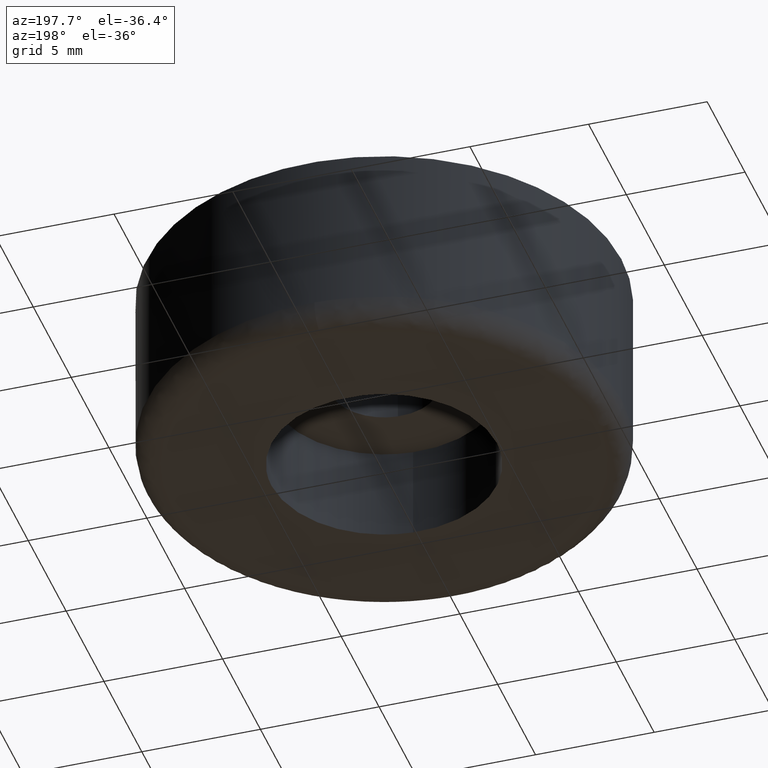
[diagram: clean part render]
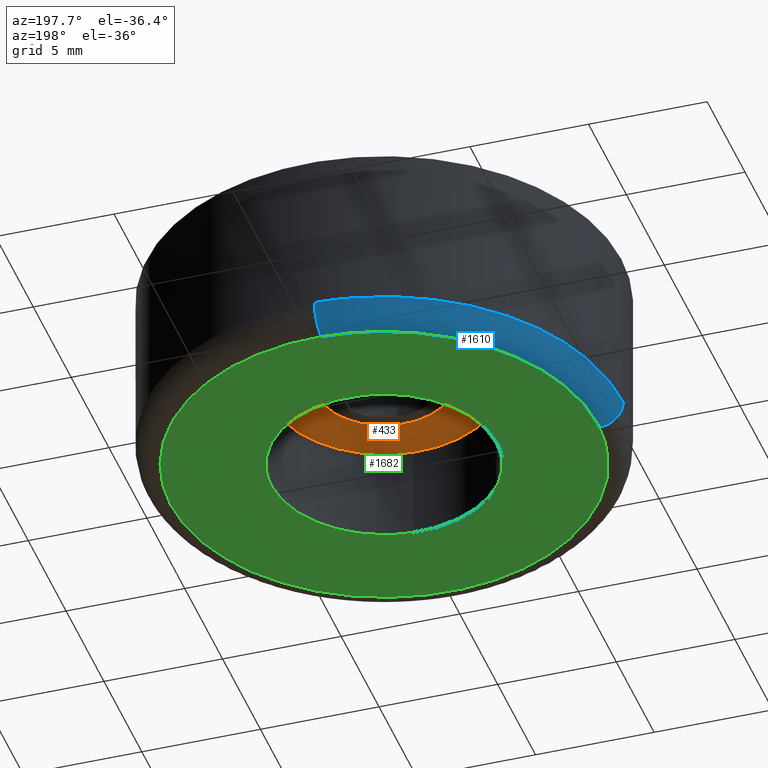
[diagram: same view with three faces highlighted in distinct colors, each labeled with its STEP entity id]
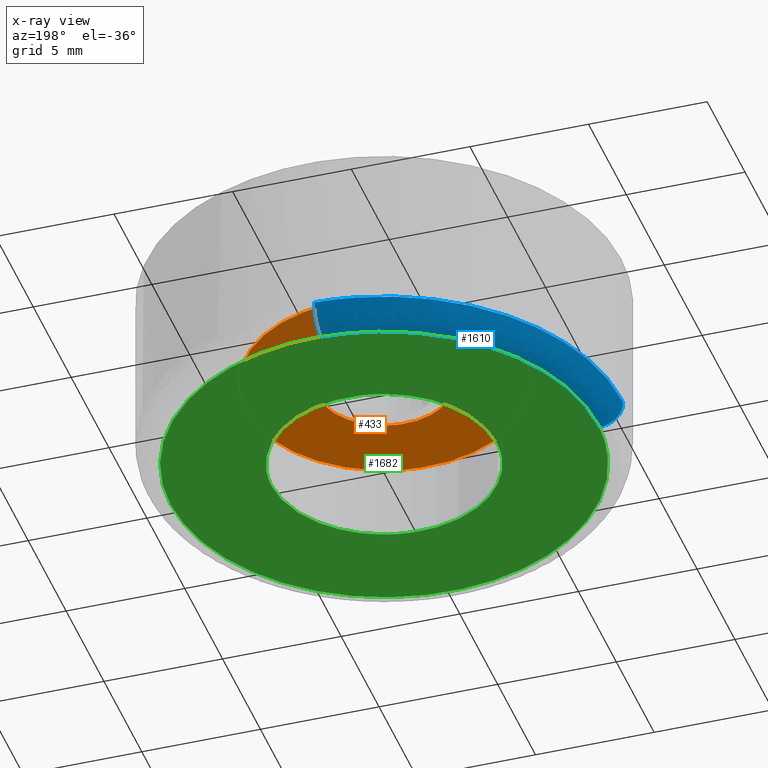
[diagram: x-ray of the same camera — body ghosted, the three highlighted faces saturated]
A machine part, auxiliary view with three faces highlighted in distinct colors.
The next image is the same camera in x-ray (body ghosted, the three faces saturated) — at least one of them is partly hidden behind the body in this view.
Their STEP definitions:

[orange] entity #433 — the highlighted face is a freeform B-spline surface patch.
#66=CARTESIAN_POINT('',(-0.330495857053595,2.780426673816522,3.999999999999901));
#67=VERTEX_POINT('',#66);
#68=CARTESIAN_POINT('',(2.800000000000000,0.0,3.999999999999901));
#69=VERTEX_POINT('',#68);
#70=CARTESIAN_POINT('',(-0.330495857053595,2.780426673816522,3.999999999999900));
#71=CARTESIAN_POINT('',(-0.165827535040175,2.800000000000000,3.999999999999901));
#72=CARTESIAN_POINT('',(0.0,2.800000000000000,3.999999999999901));
#73=CARTESIAN_POINT('',(2.800000000000000,2.800000000000000,3.999999999999901));
#74=CARTESIAN_POINT('',(2.800000000000000,0.0,3.999999999999901));
#82=(BOUNDED_CURVE()B_SPLINE_CURVE(2,(#70,#71,#72,#73,#74),.UNSPECIFIED.,.F.,.U.)B_SPLINE_CURVE_WITH_KNOTS((3,2,3),(0.229562473513861,0.250000000000000,0.500000000000000),.UNSPECIFIED.)CURVE()GEOMETRIC_REPRESENTATION_ITEM()RATIONAL_B_SPLINE_CURVE((0.956026754184390,0.976055948331558,1.0,0.707106781186547,1.0))REPRESENTATION_ITEM(''));
#83=EDGE_CURVE('',#67,#69,#82,.T.);
#85=CARTESIAN_POINT('',(0.170933944930107,-2.794777555811329,3.999999999999846));
#86=VERTEX_POINT('',#85);
#87=CARTESIAN_POINT('',(2.800000000000000,0.0,3.999999999999901));
#88=CARTESIAN_POINT('',(2.800000000000000,-2.633978843463531,3.999999999999901));
#89=CARTESIAN_POINT('',(0.170933944930107,-2.794777555811329,3.999999999999847));
#97=(BOUNDED_CURVE()B_SPLINE_CURVE(2,(#87,#88,#89),.UNSPECIFIED.,.F.,.U.)B_SPLINE_CURVE_WITH_KNOTS((3,3),(0.500000000000000,0.739333083606517),.UNSPECIFIED.)CURVE()GEOMETRIC_REPRESENTATION_ITEM()RATIONAL_B_SPLINE_CURVE((1.0,0.719603851095753,0.976072301780669))REPRESENTATION_ITEM(''));
#98=EDGE_CURVE('',#69,#86,#97,.T.);
#165=CARTESIAN_POINT('',(-2.800000000000000,0.0,3.999999999999901));
#166=VERTEX_POINT('',#165);
#167=CARTESIAN_POINT('',(-2.800000000000000,0.0,3.999999999999901));
#168=CARTESIAN_POINT('',(-2.800000000000000,2.486888672637399,3.999999999999901));
#169=CARTESIAN_POINT('',(-0.330495857053595,2.780426673816522,3.999999999999900));
#177=(BOUNDED_CURVE()B_SPLINE_CURVE(2,(#167,#168,#169),.UNSPECIFIED.,.F.,.U.)B_SPLINE_CURVE_WITH_KNOTS((3,3),(0.0,0.229562473513861),.UNSPECIFIED.)CURVE()GEOMETRIC_REPRESENTATION_ITEM()RATIONAL_B_SPLINE_CURVE((1.0,0.731050832854990,0.956026754184390))REPRESENTATION_ITEM(''));
#178=EDGE_CURVE('',#166,#67,#177,.T.);
#212=CARTESIAN_POINT('',(0.170933944930107,-2.794777555811329,3.999999999999847));
#213=CARTESIAN_POINT('',(0.085546751596445,-2.800000000000000,3.999999999999901));
#214=CARTESIAN_POINT('',(0.0,-2.800000000000000,3.999999999999901));
#215=CARTESIAN_POINT('',(-2.800000000000000,-2.800000000000000,3.999999999999901));
#216=CARTESIAN_POINT('',(-2.800000000000000,0.0,3.999999999999901));
#224=(BOUNDED_CURVE()B_SPLINE_CURVE(2,(#212,#213,#214,#215,#216),.UNSPECIFIED.,.F.,.U.)B_SPLINE_CURVE_WITH_KNOTS((3,2,3),(0.739333083606517,0.750000000000000,1.0),.UNSPECIFIED.)CURVE()GEOMETRIC_REPRESENTATION_ITEM()RATIONAL_B_SPLINE_CURVE((0.976072301780669,0.987502930090795,1.0,0.707106781186547,1.0))REPRESENTATION_ITEM(''));
#225=EDGE_CURVE('',#86,#166,#224,.T.);
#252=CARTESIAN_POINT('',(-0.690493967417739,5.809106478703879,4.000000000000060));
#253=VERTEX_POINT('',#252);
#254=CARTESIAN_POINT('',(5.850000000000001,0.0,3.999999999999901));
#255=VERTEX_POINT('',#254);
#256=CARTESIAN_POINT('',(-0.690493967417739,5.809106478703879,4.000000000000060));
#257=CARTESIAN_POINT('',(-0.346457913972497,5.850000000000000,3.999999999999901));
#258=CARTESIAN_POINT('',(0.0,5.850000000000001,3.999999999999901));
#259=CARTESIAN_POINT('',(5.850000000000001,5.850000000000001,3.999999999999901));
#260=CARTESIAN_POINT('',(5.850000000000001,0.0,3.999999999999901));
#268=(BOUNDED_CURVE()B_SPLINE_CURVE(2,(#256,#257,#258,#259,#260),.UNSPECIFIED.,.F.,.U.)B_SPLINE_CURVE_WITH_KNOTS((3,2,3),(0.229562656955301,0.250000000000000,0.500000000000000),.UNSPECIFIED.)CURVE()GEOMETRIC_REPRESENTATION_ITEM()RATIONAL_B_SPLINE_CURVE((0.956027113737436,0.976056163246574,1.0,0.707106781186548,1.0))REPRESENTATION_ITEM(''));
#269=EDGE_CURVE('',#253,#255,#268,.T.);
#310=CARTESIAN_POINT('',(0.357126633811995,-5.839089018619966,3.999999999999863));
#311=VERTEX_POINT('',#310);
#317=CARTESIAN_POINT('',(5.850000000000001,0.0,3.999999999999901));
#318=CARTESIAN_POINT('',(5.850000000000001,-5.503137405459086,3.999999999999901));
#319=CARTESIAN_POINT('',(0.357126633811995,-5.839089018619966,3.999999999999863));
#327=(BOUNDED_CURVE()B_SPLINE_CURVE(2,(#317,#318,#319),.UNSPECIFIED.,.F.,.U.)B_SPLINE_CURVE_WITH_KNOTS((3,3),(0.500000000000000,0.739333178623061),.UNSPECIFIED.)CURVE()GEOMETRIC_REPRESENTATION_ITEM()RATIONAL_B_SPLINE_CURVE((1.0,0.719603739776947,0.976072505419511))REPRESENTATION_ITEM(''));
#328=EDGE_CURVE('',#255,#311,#327,.T.);
#351=CARTESIAN_POINT('',(-5.850000000000001,0.0,3.999999999999901));
#352=VERTEX_POINT('',#351);
#353=CARTESIAN_POINT('',(-5.850000000000001,0.0,3.999999999999901));
#354=CARTESIAN_POINT('',(-5.850000000000001,5.195826656171137,3.999999999999901));
#355=CARTESIAN_POINT('',(-0.690493967417739,5.809106478703879,4.000000000000060));
#363=(BOUNDED_CURVE()B_SPLINE_CURVE(2,(#353,#354,#355),.UNSPECIFIED.,.F.,.U.)B_SPLINE_CURVE_WITH_KNOTS((3,3),(0.0,0.229562656955301),.UNSPECIFIED.)CURVE()GEOMETRIC_REPRESENTATION_ITEM()RATIONAL_B_SPLINE_CURVE((1.0,0.731050617939974,0.956027113737436))REPRESENTATION_ITEM(''));
#364=EDGE_CURVE('',#352,#253,#363,.T.);
#366=CARTESIAN_POINT('',(0.357126633811995,-5.839089018619966,3.999999999999863));
#367=CARTESIAN_POINT('',(0.178729993797895,-5.850000000000001,3.999999999999901));
#368=CARTESIAN_POINT('',(0.0,-5.850000000000001,3.999999999999901));
#369=CARTESIAN_POINT('',(-5.850000000000001,-5.850000000000001,3.999999999999901));
#370=CARTESIAN_POINT('',(-5.850000000000001,0.0,3.999999999999901));
#378=(BOUNDED_CURVE()B_SPLINE_CURVE(2,(#366,#367,#368,#369,#370),.UNSPECIFIED.,.F.,.U.)B_SPLINE_CURVE_WITH_KNOTS((3,2,3),(0.739333178623061,0.750000000000000,1.0),.UNSPECIFIED.)CURVE()GEOMETRIC_REPRESENTATION_ITEM()RATIONAL_B_SPLINE_CURVE((0.976072505419511,0.987503041409601,1.0,0.707106781186548,1.0))REPRESENTATION_ITEM(''));
#379=EDGE_CURVE('',#311,#352,#378,.T.);
#416=CARTESIAN_POINT('',(-6.434414867491902,-6.434272923016585,3.999999999999901));
#417=CARTESIAN_POINT('',(6.434415285916506,-6.434272923016585,3.999999999999901));
#418=CARTESIAN_POINT('',(-6.434414867491902,6.434308593714277,3.999999999999901));
#419=CARTESIAN_POINT('',(6.434415285916506,6.434308593714277,3.999999999999901));
#420=B_SPLINE_SURFACE_WITH_KNOTS('',1,1,((#416,#418),(#417,#419)),.UNSPECIFIED.,.F.,.F.,.U.,(2,2),(2,2),(0.0,12.868830153408410),(0.0,12.868581516730860),.UNSPECIFIED.);
#421=ORIENTED_EDGE('',*,*,#364,.T.);
#422=ORIENTED_EDGE('',*,*,#269,.T.);
#423=ORIENTED_EDGE('',*,*,#328,.T.);
#424=ORIENTED_EDGE('',*,*,#379,.T.);
#425=EDGE_LOOP('',(#421,#422,#423,#424));
#426=FACE_OUTER_BOUND('',#425,.T.);
#427=ORIENTED_EDGE('',*,*,#98,.F.);
#428=ORIENTED_EDGE('',*,*,#83,.F.);
#429=ORIENTED_EDGE('',*,*,#178,.F.);
#430=ORIENTED_EDGE('',*,*,#225,.F.);
#431=EDGE_LOOP('',(#427,#428,#429,#430));
#432=FACE_BOUND('',#431,.T.);
#433=ADVANCED_FACE('',(#426,#432),#420,.F.);

[blue] entity #1610 — the highlighted face is a freeform B-spline surface patch.
#1347=CARTESIAN_POINT('',(-0.251300954433966,9.996841892832983,0.999999999972321));
#1348=VERTEX_POINT('',#1347);
#1364=CARTESIAN_POINT('',(-10.0,0.0,1.0));
#1365=VERTEX_POINT('',#1364);
#1366=CARTESIAN_POINT('',(-10.0,0.0,1.0));
#1367=CARTESIAN_POINT('',(-10.0,9.751778761805332,1.0));
#1368=CARTESIAN_POINT('',(-0.251300954433967,9.996841892832983,0.999999999972321));
#1376=(BOUNDED_CURVE()B_SPLINE_CURVE(2,(#1366,#1367,#1368),.UNSPECIFIED.,.F.,.U.)B_SPLINE_CURVE_WITH_KNOTS((3,3),(0.0,0.245579891769787),.UNSPECIFIED.)CURVE()GEOMETRIC_REPRESENTATION_ITEM()RATIONAL_B_SPLINE_CURVE((1.0,0.712285260094752,0.989826157681529))REPRESENTATION_ITEM(''));
#1377=EDGE_CURVE('',#1365,#1348,#1376,.T.);
#1379=CARTESIAN_POINT('',(-9.996841892832979,-0.251300954434183,0.999999999972386));
#1380=VERTEX_POINT('',#1379);
#1381=CARTESIAN_POINT('',(-9.996841892832979,-0.251300954434183,0.999999999972386));
#1382=CARTESIAN_POINT('',(-9.999999999999998,-0.125670321234605,1.0));
#1383=CARTESIAN_POINT('',(-10.0,0.0,1.0));
#1391=(BOUNDED_CURVE()B_SPLINE_CURVE(2,(#1381,#1382,#1383),.UNSPECIFIED.,.F.,.U.)B_SPLINE_CURVE_WITH_KNOTS((3,3),(0.995579891769779,1.0),.UNSPECIFIED.)CURVE()GEOMETRIC_REPRESENTATION_ITEM()RATIONAL_B_SPLINE_CURVE((0.989826157681512,0.994821521091787,1.0))REPRESENTATION_ITEM(''));
#1392=EDGE_CURVE('',#1380,#1365,#1391,.T.);
#1490=CARTESIAN_POINT('',(-0.226170859030829,8.997157703990462,1.874299E-016));
#1491=VERTEX_POINT('',#1490);
#1509=CARTESIAN_POINT('',(-0.251300954433967,9.996841892832983,0.999999999972321));
#1510=CARTESIAN_POINT('',(-0.251300954431984,9.996841892777656,8.832976E-010));
#1511=CARTESIAN_POINT('',(-0.226170859030829,8.997157703990462,1.874299E-016));
#1519=(BOUNDED_CURVE()B_SPLINE_CURVE(2,(#1509,#1510,#1511),.UNSPECIFIED.,.F.,.U.)B_SPLINE_CURVE_WITH_KNOTS((3,3),(-1.723441281927773,-0.263586879842010),.UNSPECIFIED.)CURVE()GEOMETRIC_REPRESENTATION_ITEM()RATIONAL_B_SPLINE_CURVE((0.883897567118577,0.626638727408863,0.888510408734575))REPRESENTATION_ITEM(''));
#1520=EDGE_CURVE('',#1348,#1491,#1519,.T.);
#1526=CARTESIAN_POINT('',(-8.997157704003575,-0.226170859032163,1.874299E-016));
#1527=VERTEX_POINT('',#1526);
#1528=CARTESIAN_POINT('',(-9.996841892832981,-0.251300954434183,0.999999999972386));
#1529=CARTESIAN_POINT('',(-9.996841892777784,-0.251300954431986,9.095835E-010));
#1530=CARTESIAN_POINT('',(-8.997157704003575,-0.226170859032163,1.874299E-016));
#1538=(BOUNDED_CURVE()B_SPLINE_CURVE(2,(#1528,#1529,#1530),.UNSPECIFIED.,.F.,.U.)B_SPLINE_CURVE_WITH_KNOTS((3,3),(-1.723441281927906,-0.263586879869215),.UNSPECIFIED.)CURVE()GEOMETRIC_REPRESENTATION_ITEM()RATIONAL_B_SPLINE_CURVE((0.883897567118624,0.626638727413633,0.888510408724815))REPRESENTATION_ITEM(''));
#1539=EDGE_CURVE('',#1380,#1527,#1538,.T.);
#1559=CARTESIAN_POINT('',(-9.994408967665542,-0.251239795477056,1.069724204138579));
#1560=CARTESIAN_POINT('',(-10.245648763142597,9.743169172188484,1.069724204138580));
#1561=CARTESIAN_POINT('',(-0.251239795477056,9.994408967665542,1.069724204138579));
#1562=CARTESIAN_POINT('',(-10.074556635569309,-0.253254550302203,-0.077336158640998));
#1563=CARTESIAN_POINT('',(-10.327811185871514,9.821302085267105,-0.077336158640998));
#1564=CARTESIAN_POINT('',(-0.253254550302204,10.074556635569309,-0.077336158640998));
#1565=CARTESIAN_POINT('',(-8.927828621662728,-0.224428062151299,0.002407677924550));
#1566=CARTESIAN_POINT('',(-9.152256683814027,8.703400559511429,0.002407677924550));
#1567=CARTESIAN_POINT('',(-0.224428062151300,8.927828621662728,0.002407677924550));
#1575=(BOUNDED_SURFACE()B_SPLINE_SURFACE(2,2,((#1559,#1562,#1565),(#1560,#1563,#1566),(#1561,#1564,#1567)),.UNSPECIFIED.,.F.,.F.,.U.)B_SPLINE_SURFACE_WITH_KNOTS((3,3),(3,3),(0.0,16.564510219085481),(0.0,1.822370844445835),.UNSPECIFIED.)GEOMETRIC_REPRESENTATION_ITEM()RATIONAL_B_SPLINE_SURFACE(((0.910892949472383,0.599412845017406,0.915966794052128),(0.644098581506937,0.423848887442129,0.647686331415961),(0.910892949472383,0.599412845017406,0.915966794052128)))REPRESENTATION_ITEM('')SURFACE());
#1576=CARTESIAN_POINT('',(-9.0,0.0,0.0));
#1577=VERTEX_POINT('',#1576);
#1578=CARTESIAN_POINT('',(-9.0,0.0,0.0));
#1579=CARTESIAN_POINT('',(-9.000000000000002,8.776600885567889,0.0));
#1580=CARTESIAN_POINT('',(-0.226170859030829,8.997157703990462,1.874299E-016));
#1588=(BOUNDED_CURVE()B_SPLINE_CURVE(2,(#1578,#1579,#1580),.UNSPECIFIED.,.F.,.U.)B_SPLINE_CURVE_WITH_KNOTS((3,3),(0.0,0.245579891768653),.UNSPECIFIED.)CURVE()GEOMETRIC_REPRESENTATION_ITEM()RATIONAL_B_SPLINE_CURVE((1.0,0.712285260096080,0.989826157678966))REPRESENTATION_ITEM(''));
#1589=EDGE_CURVE('',#1577,#1491,#1588,.T.);
#1590=ORIENTED_EDGE('',*,*,#1589,.F.);
#1591=CARTESIAN_POINT('',(-8.997157704003575,-0.226170859032163,1.874299E-016));
#1592=CARTESIAN_POINT('',(-9.000000000000002,-0.113103289141129,0.0));
#1593=CARTESIAN_POINT('',(-9.0,0.0,0.0));
#1601=(BOUNDED_CURVE()B_SPLINE_CURVE(2,(#1591,#1592,#1593),.UNSPECIFIED.,.F.,.U.)B_SPLINE_CURVE_WITH_KNOTS((3,3),(0.995579891768614,1.0),.UNSPECIFIED.)CURVE()GEOMETRIC_REPRESENTATION_ITEM()RATIONAL_B_SPLINE_CURVE((0.989826157678877,0.994821521090421,1.0))REPRESENTATION_ITEM(''));
#1602=EDGE_CURVE('',#1527,#1577,#1601,.T.);
#1603=ORIENTED_EDGE('',*,*,#1602,.F.);
#1604=ORIENTED_EDGE('',*,*,#1539,.F.);
#1605=ORIENTED_EDGE('',*,*,#1392,.T.);
#1606=ORIENTED_EDGE('',*,*,#1377,.T.);
#1607=ORIENTED_EDGE('',*,*,#1520,.T.);
#1608=EDGE_LOOP('',(#1590,#1603,#1604,#1605,#1606,#1607));
#1609=FACE_OUTER_BOUND('',#1608,.T.);
#1610=ADVANCED_FACE('',(#1609),#1575,.T.);

[green] entity #1682 — the highlighted face is a freeform B-spline surface patch.
#1096=CARTESIAN_POINT('',(-0.560657960675820,4.716795803414524,9.937999E-017));
#1097=VERTEX_POINT('',#1096);
#1103=CARTESIAN_POINT('',(4.750000000000000,0.0,0.0));
#1104=VERTEX_POINT('',#1103);
#1105=CARTESIAN_POINT('',(-0.560657960675820,4.716795803414524,9.937999E-017));
#1106=CARTESIAN_POINT('',(-0.281312216774577,4.750000000000000,0.0));
#1107=CARTESIAN_POINT('',(0.0,4.750000000000000,0.0));
#1108=CARTESIAN_POINT('',(4.750000000000000,4.750000000000000,0.0));
#1109=CARTESIAN_POINT('',(4.750000000000000,0.0,0.0));
#1117=(BOUNDED_CURVE()B_SPLINE_CURVE(2,(#1105,#1106,#1107,#1108,#1109),.UNSPECIFIED.,.F.,.U.)B_SPLINE_CURVE_WITH_KNOTS((3,2,3),(0.229562640266929,0.250000000000000,0.500000000000000),.UNSPECIFIED.)CURVE()GEOMETRIC_REPRESENTATION_ITEM()RATIONAL_B_SPLINE_CURVE((0.956027081027489,0.976056143694930,1.0,0.707106781186548,1.0))REPRESENTATION_ITEM(''));
#1118=EDGE_CURVE('',#1097,#1104,#1117,.T.);
#1120=CARTESIAN_POINT('',(0.289974693720068,-4.741140651464304,3.191891E-016));
#1121=VERTEX_POINT('',#1120);
#1122=CARTESIAN_POINT('',(4.750000000000000,0.0,0.0));
#1123=CARTESIAN_POINT('',(4.750000000000000,-4.468359359528671,0.0));
#1124=CARTESIAN_POINT('',(0.289974693720068,-4.741140651464304,3.191891E-016));
#1132=(BOUNDED_CURVE()B_SPLINE_CURVE(2,(#1122,#1123,#1124),.UNSPECIFIED.,.F.,.U.)B_SPLINE_CURVE_WITH_KNOTS((3,3),(0.500000000000000,0.739333175838144),.UNSPECIFIED.)CURVE()GEOMETRIC_REPRESENTATION_ITEM()RATIONAL_B_SPLINE_CURVE((1.0,0.719603743039680,0.976072499450894))REPRESENTATION_ITEM(''));
#1133=EDGE_CURVE('',#1104,#1121,#1132,.T.);
#1207=CARTESIAN_POINT('',(-4.750000000000000,0.0,0.0));
#1208=VERTEX_POINT('',#1207);
#1209=CARTESIAN_POINT('',(0.289974693720068,-4.741140651464304,3.191891E-016));
#1210=CARTESIAN_POINT('',(0.145122682905173,-4.750000000000002,0.0));
#1211=CARTESIAN_POINT('',(0.0,-4.750000000000000,0.0));
#1212=CARTESIAN_POINT('',(-4.750000000000000,-4.750000000000000,0.0));
#1213=CARTESIAN_POINT('',(-4.750000000000000,0.0,0.0));
#1221=(BOUNDED_CURVE()B_SPLINE_CURVE(2,(#1209,#1210,#1211,#1212,#1213),.UNSPECIFIED.,.F.,.U.)B_SPLINE_CURVE_WITH_KNOTS((3,2,3),(0.739333175838144,0.750000000000000,1.0),.UNSPECIFIED.)CURVE()GEOMETRIC_REPRESENTATION_ITEM()RATIONAL_B_SPLINE_CURVE((0.976072499450894,0.987503038146868,1.0,0.707106781186548,1.0))REPRESENTATION_ITEM(''));
#1222=EDGE_CURVE('',#1121,#1208,#1221,.T.);
#1224=CARTESIAN_POINT('',(-4.750000000000000,0.0,0.0));
#1225=CARTESIAN_POINT('',(-4.749999999999999,4.218833190186770,0.0));
#1226=CARTESIAN_POINT('',(-0.560657960675820,4.716795803414524,9.937999E-017));
#1234=(BOUNDED_CURVE()B_SPLINE_CURVE(2,(#1224,#1225,#1226),.UNSPECIFIED.,.F.,.U.)B_SPLINE_CURVE_WITH_KNOTS((3,3),(0.0,0.229562640266929),.UNSPECIFIED.)CURVE()GEOMETRIC_REPRESENTATION_ITEM()RATIONAL_B_SPLINE_CURVE((1.0,0.731050637491618,0.956027081027489))REPRESENTATION_ITEM(''));
#1235=EDGE_CURVE('',#1208,#1097,#1234,.T.);
#1490=CARTESIAN_POINT('',(-0.226170859030829,8.997157703990462,1.874299E-016));
#1491=VERTEX_POINT('',#1490);
#1492=CARTESIAN_POINT('',(9.0,0.0,0.0));
#1493=VERTEX_POINT('',#1492);
#1494=CARTESIAN_POINT('',(-0.226170859030829,8.997157703990462,1.874299E-016));
#1495=CARTESIAN_POINT('',(-0.113103289140123,8.999999999999998,0.0));
#1496=CARTESIAN_POINT('',(0.0,9.0,0.0));
#1497=CARTESIAN_POINT('',(9.0,9.0,0.0));
#1498=CARTESIAN_POINT('',(9.0,0.0,0.0));
#1506=(BOUNDED_CURVE()B_SPLINE_CURVE(2,(#1494,#1495,#1496,#1497,#1498),.UNSPECIFIED.,.F.,.U.)B_SPLINE_CURVE_WITH_KNOTS((3,2,3),(0.245579891768653,0.250000000000000,0.500000000000000),.UNSPECIFIED.)CURVE()GEOMETRIC_REPRESENTATION_ITEM()RATIONAL_B_SPLINE_CURVE((0.989826157678966,0.994821521090467,1.0,0.707106781186547,1.0))REPRESENTATION_ITEM(''));
#1507=EDGE_CURVE('',#1491,#1493,#1506,.T.);
#1526=CARTESIAN_POINT('',(-8.997157704003575,-0.226170859032163,1.874299E-016));
#1527=VERTEX_POINT('',#1526);
#1541=CARTESIAN_POINT('',(9.0,0.0,0.0));
#1542=CARTESIAN_POINT('',(9.0,-9.0,0.0));
#1543=CARTESIAN_POINT('',(0.0,-9.0,0.0));
#1544=CARTESIAN_POINT('',(-8.776600885565950,-9.000000000000002,0.0));
#1545=CARTESIAN_POINT('',(-8.997157704003575,-0.226170859032163,1.874299E-016));
#1553=(BOUNDED_CURVE()B_SPLINE_CURVE(2,(#1541,#1542,#1543,#1544,#1545),.UNSPECIFIED.,.F.,.U.)B_SPLINE_CURVE_WITH_KNOTS((3,2,3),(0.500000000000000,0.750000000000000,0.995579891768614),.UNSPECIFIED.)CURVE()GEOMETRIC_REPRESENTATION_ITEM()RATIONAL_B_SPLINE_CURVE((1.0,0.707106781186547,1.0,0.712285260096126,0.989826157678878))REPRESENTATION_ITEM(''));
#1554=EDGE_CURVE('',#1493,#1527,#1553,.T.);
#1576=CARTESIAN_POINT('',(-9.0,0.0,0.0));
#1577=VERTEX_POINT('',#1576);
#1578=CARTESIAN_POINT('',(-9.0,0.0,0.0));
#1579=CARTESIAN_POINT('',(-9.000000000000002,8.776600885567889,0.0));
#1580=CARTESIAN_POINT('',(-0.226170859030829,8.997157703990462,1.874299E-016));
#1588=(BOUNDED_CURVE()B_SPLINE_CURVE(2,(#1578,#1579,#1580),.UNSPECIFIED.,.F.,.U.)B_SPLINE_CURVE_WITH_KNOTS((3,3),(0.0,0.245579891768653),.UNSPECIFIED.)CURVE()GEOMETRIC_REPRESENTATION_ITEM()RATIONAL_B_SPLINE_CURVE((1.0,0.712285260096080,0.989826157678966))REPRESENTATION_ITEM(''));
#1589=EDGE_CURVE('',#1577,#1491,#1588,.T.);
#1591=CARTESIAN_POINT('',(-8.997157704003575,-0.226170859032163,1.874299E-016));
#1592=CARTESIAN_POINT('',(-9.000000000000002,-0.113103289141129,0.0));
#1593=CARTESIAN_POINT('',(-9.0,0.0,0.0));
#1601=(BOUNDED_CURVE()B_SPLINE_CURVE(2,(#1591,#1592,#1593),.UNSPECIFIED.,.F.,.U.)B_SPLINE_CURVE_WITH_KNOTS((3,3),(0.995579891768614,1.0),.UNSPECIFIED.)CURVE()GEOMETRIC_REPRESENTATION_ITEM()RATIONAL_B_SPLINE_CURVE((0.989826157678877,0.994821521090421,1.0))REPRESENTATION_ITEM(''));
#1602=EDGE_CURVE('',#1527,#1577,#1601,.T.);
#1665=CARTESIAN_POINT('',(-9.899099965112507,-9.898212029364723,0.0));
#1666=CARTESIAN_POINT('',(9.899100447910129,-9.898212029364723,0.0));
#1667=CARTESIAN_POINT('',(-9.899099965112507,9.896080690907740,0.0));
#1668=CARTESIAN_POINT('',(9.899100447910129,9.896080690907740,0.0));
#1669=B_SPLINE_SURFACE_WITH_KNOTS('',1,1,((#1665,#1667),(#1666,#1668)),.UNSPECIFIED.,.F.,.F.,.U.,(2,2),(2,2),(0.0,19.798200413022631),(0.0,19.794292720272459),.UNSPECIFIED.);
#1670=ORIENTED_EDGE('',*,*,#1589,.T.);
#1671=ORIENTED_EDGE('',*,*,#1507,.T.);
#1672=ORIENTED_EDGE('',*,*,#1554,.T.);
#1673=ORIENTED_EDGE('',*,*,#1602,.T.);
#1674=EDGE_LOOP('',(#1670,#1671,#1672,#1673));
#1675=FACE_OUTER_BOUND('',#1674,.T.);
#1676=ORIENTED_EDGE('',*,*,#1133,.F.);
#1677=ORIENTED_EDGE('',*,*,#1118,.F.);
#1678=ORIENTED_EDGE('',*,*,#1235,.F.);
#1679=ORIENTED_EDGE('',*,*,#1222,.F.);
#1680=EDGE_LOOP('',(#1676,#1677,#1678,#1679));
#1681=FACE_BOUND('',#1680,.T.);
#1682=ADVANCED_FACE('',(#1675,#1681),#1669,.F.);